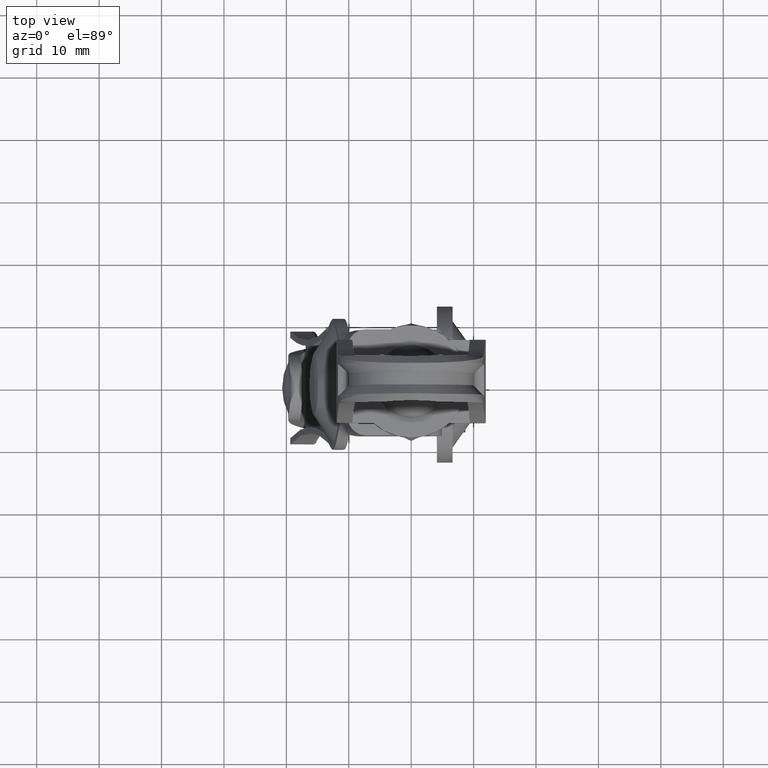
[diagram: clean part render]
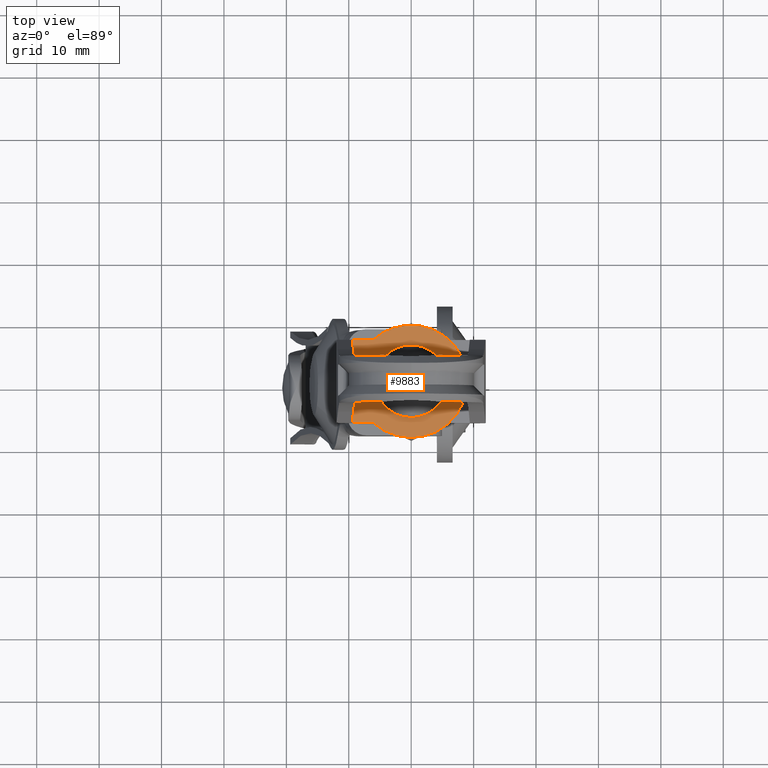
[diagram: same view with one face highlighted and labeled with its STEP entity id]
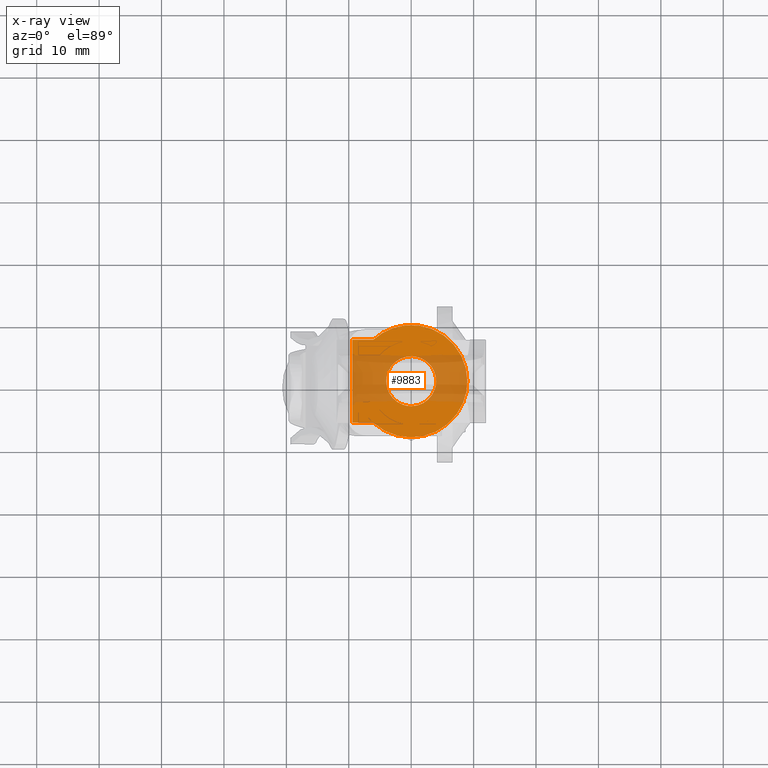
[diagram: x-ray of the same camera — body ghosted, the highlighted face saturated]
A machine part, top view. The second image highlights one B-rep face of the part: STEP entity #9883.
The next image is the same camera in x-ray: the body ghosted, the highlighted face saturated — about 39% of this face is hidden behind the body in this view.
In plain terms, the highlighted face is a freeform B-spline surface patch.
Its self-contained STEP definition (entity closure, byte-faithful):
#7176=CARTESIAN_POINT('',(-2.582968583533989,3.054223375694360,29.783035000000151));
#7177=VERTEX_POINT('',#7176);
#7183=CARTESIAN_POINT('',(-4.0,0.0,29.783035000000151));
#7184=VERTEX_POINT('',#7183);
#7185=CARTESIAN_POINT('',(-2.582968583533989,3.054223375694360,29.783035000000151));
#7186=CARTESIAN_POINT('',(-2.942603934713310,2.750594139247454,29.783035000000130));
#7187=CARTESIAN_POINT('',(-3.434879424347927,2.155888340312664,29.783035000000179));
#7188=CARTESIAN_POINT('',(-3.896400569349095,1.085905036775064,29.783035000000091));
#7189=CARTESIAN_POINT('',(-4.000185138367383,0.398227017485849,29.783035000000179));
#7190=CARTESIAN_POINT('',(-4.0,0.0,29.783035000000151));
#7191=B_SPLINE_CURVE_WITH_KNOTS('',3,(#7185,#7186,#7187,#7188,#7189,#7190),.UNSPECIFIED.,.F.,.U.,(4,1,1,4),(0.000000071578331,1.411863643503362,2.280659435463817,3.475313774214595),.UNSPECIFIED.);
#7192=EDGE_CURVE('',#7177,#7184,#7191,.T.);
#7194=CARTESIAN_POINT('',(0.000003616275954,-3.999999999998365,29.783035000000151));
#7195=VERTEX_POINT('',#7194);
#7196=CARTESIAN_POINT('',(-4.0,0.0,29.783035000000151));
#7197=CARTESIAN_POINT('',(-4.000224461885609,-0.425448384223743,29.783035000000179));
#7198=CARTESIAN_POINT('',(-3.884008636862788,-1.145242148935742,29.783035000000091));
#7199=CARTESIAN_POINT('',(-3.404177215525605,-2.192997191395309,29.783035000000201));
#7200=CARTESIAN_POINT('',(-2.636215399543782,-3.106168823684897,29.783035000000080));
#7201=CARTESIAN_POINT('',(-1.439646439406105,-3.823097593337704,29.783035000000279));
#7202=CARTESIAN_POINT('',(-0.490932886157622,-4.000420223238874,29.783035000000059));
#7203=CARTESIAN_POINT('',(0.000003616275954,-3.999999999998365,29.783035000000151));
#7204=B_SPLINE_CURVE_WITH_KNOTS('',3,(#7196,#7197,#7198,#7199,#7200,#7201,#7202,#7203),.UNSPECIFIED.,.F.,.U.,(4,1,1,1,1,4),(0.000000277037134,1.276293930359842,2.159930644962826,3.436139110121054,4.810691577767215,6.283345015595878),.UNSPECIFIED.);
#7205=EDGE_CURVE('',#7184,#7195,#7204,.T.);
#7207=CARTESIAN_POINT('',(4.0,0.0,29.783035000000151));
#7208=VERTEX_POINT('',#7207);
#7209=CARTESIAN_POINT('',(0.000003616275954,-3.999999999998365,29.783035000000151));
#7210=CARTESIAN_POINT('',(0.327255071342441,-4.000071669041176,29.783035000000169));
#7211=CARTESIAN_POINT('',(0.981722822485312,-3.919252295240145,29.783035000000151));
#7212=CARTESIAN_POINT('',(1.873877119992181,-3.575150685115553,29.783035000000080));
#7213=CARTESIAN_POINT('',(2.661180409815828,-3.034925057243260,29.783035000000279));
#7214=CARTESIAN_POINT('',(3.392149853972412,-2.228835225787578,29.783035000000009));
#7215=CARTESIAN_POINT('',(3.889046249200908,-1.178148942639840,29.783035000000329));
#7216=CARTESIAN_POINT('',(4.000069158306741,-0.359955397034707,29.783035000000069));
#7217=CARTESIAN_POINT('',(4.0,0.0,29.783035000000151));
#7218=B_SPLINE_CURVE_WITH_KNOTS('',3,(#7209,#7210,#7211,#7212,#7213,#7214,#7215,#7216,#7217),.UNSPECIFIED.,.F.,.U.,(4,1,1,1,1,1,4),(0.000000281990730,0.981756329625294,1.963563644173109,2.847200635286174,3.828905444302007,5.203414979552668,6.283340939108336),.UNSPECIFIED.);
#7219=EDGE_CURVE('',#7195,#7208,#7218,.T.);
#7221=CARTESIAN_POINT('',(2.901496810902712,2.753417700546166,29.783035000000151));
#7222=VERTEX_POINT('',#7221);
#7223=CARTESIAN_POINT('',(4.0,0.0,29.783035000000151));
#7224=CARTESIAN_POINT('',(4.000596888494015,0.537865575237094,29.783035000000169));
#7225=CARTESIAN_POINT('',(3.792529841066544,1.549583937601193,29.783035000000119));
#7226=CARTESIAN_POINT('',(3.228431154498322,2.409434152584110,29.783035000000179));
#7227=CARTESIAN_POINT('',(2.901496810902712,2.753417700546166,29.783035000000151));
#7228=B_SPLINE_CURVE_WITH_KNOTS('',3,(#7223,#7224,#7225,#7226,#7227),.UNSPECIFIED.,.F.,.U.,(4,1,4),(0.000000084491976,1.613354522245312,3.036943794139454),.UNSPECIFIED.);
#7229=EDGE_CURVE('',#7208,#7222,#7228,.T.);
#7310=CARTESIAN_POINT('',(-0.000003616275958,3.999999999998366,29.783035000000151));
#7311=VERTEX_POINT('',#7310);
#7312=CARTESIAN_POINT('',(2.901496810902712,2.753417700546166,29.783035000000151));
#7313=CARTESIAN_POINT('',(2.506310565585241,3.171108777029502,29.783035000000119));
#7314=CARTESIAN_POINT('',(1.588966474726860,3.791208011912476,29.783035000000218));
#7315=CARTESIAN_POINT('',(0.507315144613737,4.000496321190673,29.783035000000119));
#7316=CARTESIAN_POINT('',(-0.000003616275958,3.999999999998366,29.783035000000151));
#7317=B_SPLINE_CURVE_WITH_KNOTS('',3,(#7312,#7313,#7314,#7315,#7316),.UNSPECIFIED.,.F.,.U.,(4,1,4),(0.000000082292963,1.724635088928599,3.246402614459278),.UNSPECIFIED.);
#7318=EDGE_CURVE('',#7222,#7311,#7317,.T.);
#7320=CARTESIAN_POINT('',(-0.000003616275958,3.999999999998366,29.783035000000151));
#7321=CARTESIAN_POINT('',(-0.497304663656883,4.000465777710295,29.783035000000179));
#7322=CARTESIAN_POINT('',(-1.432918859549646,3.823026835150593,29.783035000000069));
#7323=CARTESIAN_POINT('',(-2.248091917578142,3.337754085652356,29.783035000000229));
#7324=CARTESIAN_POINT('',(-2.582968583533989,3.054223375694360,29.783035000000151));
#7325=B_SPLINE_CURVE_WITH_KNOTS('',3,(#7320,#7321,#7322,#7323,#7324),.UNSPECIFIED.,.F.,.U.,(4,1,4),(0.000000077153760,1.491741722220309,2.808031616423105),.UNSPECIFIED.);
#7326=EDGE_CURVE('',#7311,#7177,#7325,.T.);
#9190=CARTESIAN_POINT('',(-6.056398842790880,6.657329273593220,29.783035000000151));
#9191=VERTEX_POINT('',#9190);
#9199=CARTESIAN_POINT('',(8.999999998816300,-0.000145967848902,29.783035000000140));
#9200=VERTEX_POINT('',#9199);
#9201=CARTESIAN_POINT('',(8.999999998816300,-0.000145967848902,29.783035000000140));
#9202=CARTESIAN_POINT('',(9.000510501247071,0.919888708898309,29.783035000000119));
#9203=CARTESIAN_POINT('',(8.782328884748091,2.326608499286254,29.783035000000151));
#9204=CARTESIAN_POINT('',(8.104573226560868,3.985240150729166,29.783035000000151));
#9205=CARTESIAN_POINT('',(7.251895473450449,5.433987404208403,29.783035000000151));
#9206=CARTESIAN_POINT('',(6.158625133724915,6.654234799693247,29.783035000000201));
#9207=CARTESIAN_POINT('',(4.758334873578893,7.680834435274322,29.783035000000151));
#9208=CARTESIAN_POINT('',(3.265072419584477,8.457474291543518,29.783035000000009));
#9209=CARTESIAN_POINT('',(1.531208889281543,8.941045963042383,29.783035000000229));
#9210=CARTESIAN_POINT('',(-0.530512608960648,9.055702072419400,29.783035000000169));
#9211=CARTESIAN_POINT('',(-2.253505136521023,8.776053198013928,29.783035000000130));
#9212=CARTESIAN_POINT('',(-4.234417218392037,8.031732084801984,29.783035000000019));
#9213=CARTESIAN_POINT('',(-5.376176424960739,7.276868412585973,29.783035000000169));
#9214=CARTESIAN_POINT('',(-6.056398842790880,6.657329273593220,29.783035000000151));
#9215=B_SPLINE_CURVE_WITH_KNOTS('',3,(#9201,#9202,#9203,#9204,#9205,#9206,#9207,#9208,#9209,#9210,#9211,#9212,#9213,#9214),.UNSPECIFIED.,.F.,.U.,(4,1,1,1,1,1,1,1,1,1,1,4),(0.000000130586098,2.759930260292382,4.221139374813038,5.357630697372258,7.792967805605596,9.091793459343315,10.552889126688120,12.825799410935881,14.449337378221980,16.722309828833939,18.021116093342481,20.781098092423161),.UNSPECIFIED.);
#9216=EDGE_CURVE('',#9200,#9191,#9215,.T.);
#9218=CARTESIAN_POINT('',(-6.056621178996680,-6.657127000000000,29.783035000000151));
#9219=VERTEX_POINT('',#9218);
#9220=CARTESIAN_POINT('',(-6.056621178996680,-6.657127000000000,29.783035000000151));
#9221=CARTESIAN_POINT('',(-5.536332696490891,-7.130651846971030,29.783035000000151));
#9222=CARTESIAN_POINT('',(-4.383981490557949,-7.954795828815910,29.783035000000130));
#9223=CARTESIAN_POINT('',(-2.617494700580374,-8.673597275323537,29.783035000000218));
#9224=CARTESIAN_POINT('',(-1.017278331515762,-8.977913488229707,29.783035000000030));
#9225=CARTESIAN_POINT('',(0.501062971330718,-9.030645703855470,29.783035000000240));
#9226=CARTESIAN_POINT('',(2.009592200971412,-8.823168469900127,29.783035000000151));
#9227=CARTESIAN_POINT('',(3.454032196503138,-8.349101651851736,29.783035000000108));
#9228=CARTESIAN_POINT('',(4.663088664666388,-7.734295793373554,29.783035000000179));
#9229=CARTESIAN_POINT('',(6.081722624363626,-6.733166732373060,29.783035000000130));
#9230=CARTESIAN_POINT('',(7.334849376153958,-5.359817175263327,29.783035000000151));
#9231=CARTESIAN_POINT('',(8.228508856401909,-3.742740664359398,29.783035000000179));
#9232=CARTESIAN_POINT('',(8.830394738702305,-2.056421958158694,29.783034999999980));
#9233=CARTESIAN_POINT('',(9.000240333190787,-0.811918452788968,29.783035000000361));
#9234=CARTESIAN_POINT('',(8.999999998816300,-0.000145967848902,29.783035000000140));
#9235=B_SPLINE_CURVE_WITH_KNOTS('',3,(#9220,#9221,#9222,#9223,#9224,#9225,#9226,#9227,#9228,#9229,#9230,#9231,#9232,#9233,#9234),.UNSPECIFIED.,.F.,.U.,(4,1,1,1,1,1,1,1,1,1,1,1,4),(0.000000130592056,2.110538184305469,4.221141130619177,5.682345715247223,6.981165597741448,8.767103067823735,10.228206075090050,11.526940497215760,12.825804745863230,15.423473308096490,17.047038198499500,18.345855427320942,20.781106736508839),.UNSPECIFIED.);
#9236=EDGE_CURVE('',#9219,#9200,#9235,.T.);
#9355=CARTESIAN_POINT('',(-9.439746869782635,-6.657126999999960,29.783502472654000));
#9356=VERTEX_POINT('',#9355);
#9357=CARTESIAN_POINT('',(-9.439746869782635,-6.657126999999960,29.783502472654000));
#9358=CARTESIAN_POINT('',(-6.056621178996680,-6.657127000000000,29.783035000000151));
#9359=QUASI_UNIFORM_CURVE('',1,(#9357,#9358),.UNSPECIFIED.,.F.,.U.);
#9360=EDGE_CURVE('',#9356,#9219,#9359,.T.);
#9656=CARTESIAN_POINT('',(-9.439757999999999,6.657329273593220,29.783035000000101));
#9657=VERTEX_POINT('',#9656);
#9658=CARTESIAN_POINT('',(-9.439757999999999,6.657329273593220,29.783035000000101));
#9659=CARTESIAN_POINT('',(-6.056398842790880,6.657329273593220,29.783035000000151));
#9660=QUASI_UNIFORM_CURVE('',1,(#9658,#9659),.UNSPECIFIED.,.F.,.U.);
#9661=EDGE_CURVE('',#9657,#9191,#9660,.T.);
#9859=CARTESIAN_POINT('',(9.921065875117343,-9.894218616510962,29.783035000000101));
#9860=CARTESIAN_POINT('',(-10.360824370893900,-9.894218616510962,29.783035000000101));
#9861=CARTESIAN_POINT('',(9.921065875117343,9.894268821813972,29.783035000000101));
#9862=CARTESIAN_POINT('',(-10.360824370893900,9.894268821813972,29.783035000000101));
#9863=B_SPLINE_SURFACE_WITH_KNOTS('',1,1,((#9859,#9861),(#9860,#9862)),.UNSPECIFIED.,.F.,.F.,.U.,(2,2),(2,2),(0.0,20.281890246011240),(0.0,19.788487438324939),.UNSPECIFIED.);
#9864=ORIENTED_EDGE('',*,*,#9236,.T.);
#9865=ORIENTED_EDGE('',*,*,#9216,.T.);
#9866=ORIENTED_EDGE('',*,*,#9661,.F.);
#9867=CARTESIAN_POINT('',(-9.439757999999999,6.657329273593220,29.783035000000101));
#9868=CARTESIAN_POINT('',(-9.439746869782635,-6.657126999999960,29.783502472654000));
#9869=QUASI_UNIFORM_CURVE('',1,(#9867,#9868),.UNSPECIFIED.,.F.,.U.);
#9870=EDGE_CURVE('',#9657,#9356,#9869,.T.);
#9871=ORIENTED_EDGE('',*,*,#9870,.T.);
#9872=ORIENTED_EDGE('',*,*,#9360,.T.);
#9873=EDGE_LOOP('',(#9864,#9865,#9866,#9871,#9872));
#9874=FACE_OUTER_BOUND('',#9873,.T.);
#9875=ORIENTED_EDGE('',*,*,#7205,.F.);
#9876=ORIENTED_EDGE('',*,*,#7192,.F.);
#9877=ORIENTED_EDGE('',*,*,#7326,.F.);
#9878=ORIENTED_EDGE('',*,*,#7318,.F.);
#9879=ORIENTED_EDGE('',*,*,#7229,.F.);
#9880=ORIENTED_EDGE('',*,*,#7219,.F.);
#9881=EDGE_LOOP('',(#9875,#9876,#9877,#9878,#9879,#9880));
#9882=FACE_BOUND('',#9881,.T.);
#9883=ADVANCED_FACE('',(#9874,#9882),#9863,.F.);